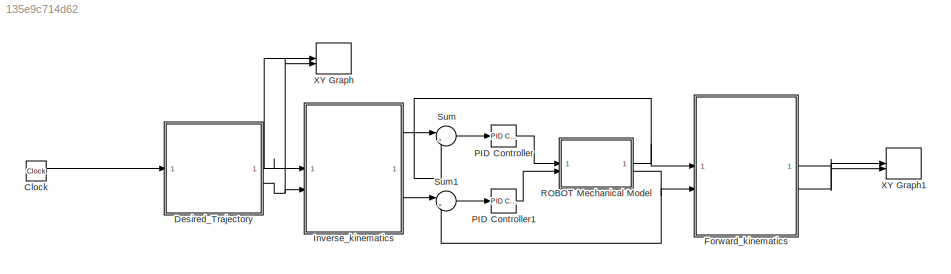
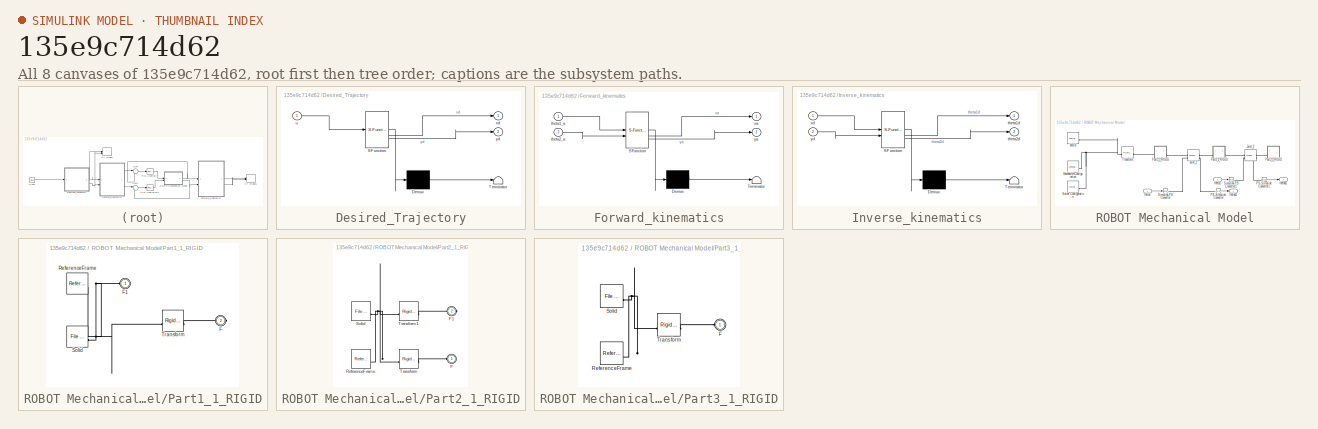
[diagram: thumbnail index - all 8 canvases of the model, root first then tree order]
MODEL slx_135e9c714d62
KIND model
CONFIG AbsTol = auto
CONFIG EnableMultiTasking = off
CONFIG FixedStep = auto
CONFIG MaxStep = auto
CONFIG MinStep = auto
CONFIG RelTol = 1e-3
CONFIG SampleTimeConstraint = Unconstrained
CONFIG SolverName = FixedStepAuto
CONFIG StartTime = 0.0
CONFIG StopTime = 10
WORKSPACE source: external: MATLAB File  (data not in archive)
BLOCK [Clock] Clock
BLOCK [SubSystem] Desired_Trajectory
  ErrorFcn = Stateflow.Translate.translate
  LibrarySourceBlock = simulink/User-Defined\nFunctions/MATLAB Function
  PermitHierarchicalResolution = ExplicitOnly
  SFBlockType = MATLAB Function
  TreatAsAtomicUnit = on
BLOCK [Demux] Desired_Trajectory/ Demux 
  Outputs = 1
BLOCK [S-Function] Desired_Trajectory/ SFunction 
  EnableBusSupport = on
  FunctionName = sf_sfun
  PortCounts = [1 3]
  SFcnIsStateOwnerBlock = off
  SFunctionDeploymentMode = off
  Tag = Stateflow S-Function 2
BLOCK [Terminator] Desired_Trajectory/ Terminator 
BLOCK [Inport] Desired_Trajectory/u
BLOCK [Outport] Desired_Trajectory/xd
BLOCK [Outport] Desired_Trajectory/yd
  Port = 2
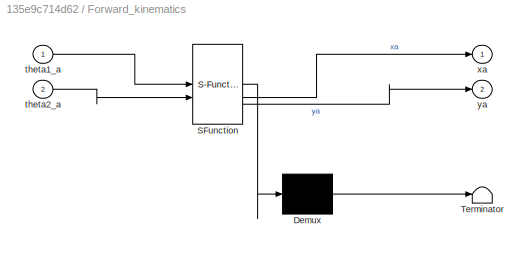
BLOCK [SubSystem] Forward_kinematics
  ErrorFcn = Stateflow.Translate.translate
  LibrarySourceBlock = simulink/User-Defined\nFunctions/MATLAB Function
  PermitHierarchicalResolution = ExplicitOnly
  SFBlockType = MATLAB Function
  TreatAsAtomicUnit = on
BLOCK [Demux] Forward_kinematics/ Demux 
  Outputs = 1
BLOCK [S-Function] Forward_kinematics/ SFunction 
  EnableBusSupport = on
  FunctionName = sf_sfun
  PortCounts = [2 3]
  SFcnIsStateOwnerBlock = off
  SFunctionDeploymentMode = off
  Tag = Stateflow S-Function 1
BLOCK [Terminator] Forward_kinematics/ Terminator 
BLOCK [Inport] Forward_kinematics/theta1_a
BLOCK [Inport] Forward_kinematics/theta2_a
  Port = 2
BLOCK [Outport] Forward_kinematics/xa
BLOCK [Outport] Forward_kinematics/ya
  Port = 2
BLOCK [SubSystem] Inverse_kinematics
  ErrorFcn = Stateflow.Translate.translate
  LibrarySourceBlock = simulink/User-Defined\nFunctions/MATLAB Function
  PermitHierarchicalResolution = ExplicitOnly
  SFBlockType = MATLAB Function
  TreatAsAtomicUnit = on
BLOCK [Demux] Inverse_kinematics/ Demux 
  Outputs = 1
BLOCK [S-Function] Inverse_kinematics/ SFunction 
  EnableBusSupport = on
  FunctionName = sf_sfun
  PortCounts = [2 3]
  SFcnIsStateOwnerBlock = off
  SFunctionDeploymentMode = off
  Tag = Stateflow S-Function 3
BLOCK [Terminator] Inverse_kinematics/ Terminator 
BLOCK [Outport] Inverse_kinematics/theta1d
BLOCK [Outport] Inverse_kinematics/theta2d
  Port = 2
BLOCK [Inport] Inverse_kinematics/xd
BLOCK [Inport] Inverse_kinematics/yd
  Port = 2
BLOCK [Reference] PID Controller  REF=slpidlib/PID Controller
  LibrarySourceBlock = simulink/Continuous/PID Controller
  SourceBlock = slpidlib/PID Controller
  SourceType = PID 1dof
BLOCK [Reference] PID Controller1  REF=slpidlib/PID Controller
  LibrarySourceBlock = simulink/Continuous/PID Controller
  SourceBlock = slpidlib/PID Controller
  SourceType = PID 1dof
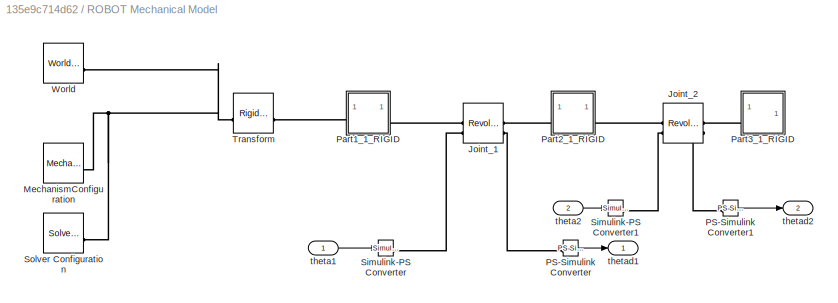
BLOCK [SubSystem] ROBOT Mechanical Model
BLOCK [Reference] ROBOT Mechanical Model/Joint_1  REF=sm_lib/Joints/Revolute Joint
  SourceBlock = sm_lib/Joints/Revolute Joint
  SourceType = Revolute Joint
BLOCK [Reference] ROBOT Mechanical Model/Joint_2  REF=sm_lib/Joints/Revolute Joint
  SourceBlock = sm_lib/Joints/Revolute Joint
  SourceType = Revolute Joint
BLOCK [Reference] ROBOT Mechanical Model/MechanismConfiguration  REF=sm_lib/Utilities/Mechanism
Configuration
  SourceBlock = sm_lib/Utilities/Mechanism\nConfiguration
  SourceType = Mechanism\nConfiguration
BLOCK [Reference] ROBOT Mechanical Model/PS-Simulink Converter  REF=nesl_utility/PS-Simulink
Converter
  SourceBlock = nesl_utility/PS-Simulink\nConverter
  SourceType = PS-Simulink\nConverter
BLOCK [Reference] ROBOT Mechanical Model/PS-Simulink Converter1  REF=nesl_utility/PS-Simulink
Converter
  SourceBlock = nesl_utility/PS-Simulink\nConverter
  SourceType = PS-Simulink\nConverter
BLOCK [SubSystem] ROBOT Mechanical Model/Part1_1_RIGID
BLOCK [PMIOPort] ROBOT Mechanical Model/Part1_1_RIGID/F
  Port = 2
  Side = Right
BLOCK [PMIOPort] ROBOT Mechanical Model/Part1_1_RIGID/F1
  Side = Left
BLOCK [Reference] ROBOT Mechanical Model/Part1_1_RIGID/ReferenceFrame  REF=sm_lib/Frames and
Transforms/Reference
Frame
  SourceBlock = sm_lib/Frames and\nTransforms/Reference\nFrame
  SourceType = Reference\nFrame
BLOCK [Reference] ROBOT Mechanical Model/Part1_1_RIGID/Solid  REF=sm_lib/Body Elements/File Solid
  SourceBlock = sm_lib/Body Elements/File Solid
  SourceType = File Solid
BLOCK [Reference] ROBOT Mechanical Model/Part1_1_RIGID/Transform  REF=sm_lib/Frames and
Transforms/Rigid
Transform
  SourceBlock = sm_lib/Frames and\nTransforms/Rigid\nTransform
  SourceType = Rigid\nTransform
BLOCK [SubSystem] ROBOT Mechanical Model/Part2_1_RIGID
BLOCK [PMIOPort] ROBOT Mechanical Model/Part2_1_RIGID/F
  Side = Left
BLOCK [PMIOPort] ROBOT Mechanical Model/Part2_1_RIGID/F1
  Port = 2
  Side = Right
BLOCK [Reference] ROBOT Mechanical Model/Part2_1_RIGID/ReferenceFrame  REF=sm_lib/Frames and
Transforms/Reference
Frame
  SourceBlock = sm_lib/Frames and\nTransforms/Reference\nFrame
  SourceType = Reference\nFrame
BLOCK [Reference] ROBOT Mechanical Model/Part2_1_RIGID/Solid  REF=sm_lib/Body Elements/File Solid
  SourceBlock = sm_lib/Body Elements/File Solid
  SourceType = File Solid
BLOCK [Reference] ROBOT Mechanical Model/Part2_1_RIGID/Transform  REF=sm_lib/Frames and
Transforms/Rigid
Transform
  SourceBlock = sm_lib/Frames and\nTransforms/Rigid\nTransform
  SourceType = Rigid\nTransform
BLOCK [Reference] ROBOT Mechanical Model/Part2_1_RIGID/Transform1  REF=sm_lib/Frames and
Transforms/Rigid
Transform
  SourceBlock = sm_lib/Frames and\nTransforms/Rigid\nTransform
  SourceType = Rigid\nTransform
BLOCK [SubSystem] ROBOT Mechanical Model/Part3_1_RIGID
BLOCK [PMIOPort] ROBOT Mechanical Model/Part3_1_RIGID/F
  Side = Left
BLOCK [Reference] ROBOT Mechanical Model/Part3_1_RIGID/ReferenceFrame  REF=sm_lib/Frames and
Transforms/Reference
Frame
  SourceBlock = sm_lib/Frames and\nTransforms/Reference\nFrame
  SourceType = Reference\nFrame
BLOCK [Reference] ROBOT Mechanical Model/Part3_1_RIGID/Solid  REF=sm_lib/Body Elements/File Solid
  SourceBlock = sm_lib/Body Elements/File Solid
  SourceType = File Solid
BLOCK [Reference] ROBOT Mechanical Model/Part3_1_RIGID/Transform  REF=sm_lib/Frames and
Transforms/Rigid
Transform
  SourceBlock = sm_lib/Frames and\nTransforms/Rigid\nTransform
  SourceType = Rigid\nTransform
BLOCK [Reference] ROBOT Mechanical Model/Simulink-PS Converter  REF=nesl_utility/Simulink-PS
Converter
  SourceBlock = nesl_utility/Simulink-PS\nConverter
  SourceType = Simulink-PS\nConverter
BLOCK [Reference] ROBOT Mechanical Model/Simulink-PS Converter1  REF=nesl_utility/Simulink-PS
Converter
  SourceBlock = nesl_utility/Simulink-PS\nConverter
  SourceType = Simulink-PS\nConverter
BLOCK [Reference] ROBOT Mechanical Model/Solver Configuration  REF=nesl_utility/Solver
Configuration
  SourceBlock = nesl_utility/Solver\nConfiguration
  SourceType = Solver\nConfiguration
BLOCK [Reference] ROBOT Mechanical Model/Transform  REF=sm_lib/Frames and
Transforms/Rigid
Transform
  SourceBlock = sm_lib/Frames and\nTransforms/Rigid\nTransform
  SourceType = Rigid\nTransform
BLOCK [Reference] ROBOT Mechanical Model/World  REF=sm_lib/Frames and
Transforms/World Frame
  SourceBlock = sm_lib/Frames and\nTransforms/World Frame
  SourceType = World Frame
BLOCK [Inport] ROBOT Mechanical Model/theta1
BLOCK [Inport] ROBOT Mechanical Model/theta2
  Port = 2
BLOCK [Outport] ROBOT Mechanical Model/thetad1
BLOCK [Outport] ROBOT Mechanical Model/thetad2
  Port = 2
BLOCK [Sum] Sum
  Inputs = |+-
BLOCK [Sum] Sum1
  Inputs = |+-
BLOCK [Record] XY Graph
  CompatibilityTag = XY
  FileSettingsInternal = {"entries":[{"content":{"excelSettings":{"content":{},"type":"Streamout.ExcelSettings"}},"type":"Streamout.FileSettingStorage","uuid":"2eab9bf2-d17b-45b5-89aa-d0e00e681bdd"}],"packageUris":["http://schema.mathworks.com/mf0/streamout_blocks/R2020a"],"version":"1.0"}
  Layout = [1 1]
  SignalsInternal = {"entries":[{"content":{"signals":[{"content":{"blockPath":["Robotics_Arm/XY Graph"],"channel":[],"dimensions":[1],"domain":"Robotics_Arm/XY Graph","lineColor":"#a2142f","plots":[1],"port":1,"sid":[""],"signalID":395,"signalName":"Desired_Trajectory:1"},"type":"RecordBlkView.Signal","uuid":"5d34281d-6d91-4a7d-b94d-586ddb86f2d8"},{"content":{"blockPath":["Robotics_Arm/XY Graph"],"channel":[],"dimen...<+403ch>
  VisualizationBindings = {"xyplotplugin":{"info":[{"series":[{"bindingParametersList":[{"parameter":"X-Axis","signalID":395,"signalName":"Desired_Trajectory:1"},{"parameter":"Y-Axis","signalID":399,"signalName":"Desired_Trajectory:2"}],"seriesID":58681}],"subplotID":1}]}}
BLOCK [Record] XY Graph1
  CompatibilityTag = XY
  FileSettingsInternal = {"entries":[{"content":{"excelSettings":{"content":{},"type":"Streamout.ExcelSettings"}},"type":"Streamout.FileSettingStorage","uuid":"1b659b81-0627-4da4-8fe3-9d1aa1dba5cf"}],"packageUris":["http://schema.mathworks.com/mf0/streamout_blocks/R2020a"],"version":"1.0"}
  Layout = [1 1]
  SignalsInternal = {"entries":[{"content":{"signals":[{"content":{"blockPath":["Robotics_Arm/XY Graph1"],"channel":[],"dimensions":[1],"domain":"Robotics_Arm/XY Graph1","lineColor":"#a2142f","plots":[1],"port":1,"sid":[""],"signalID":403,"signalName":"Forward_kinematics:1"},"type":"RecordBlkView.Signal","uuid":"eb5d89e5-5a8d-404c-ad89-7674438167e7"},{"content":{"blockPath":["Robotics_Arm/XY Graph1"],"channel":[],"di...<+407ch>
  VisualizationBindings = {"xyplotplugin":{"info":[{"series":[{"bindingParametersList":[{"parameter":"X-Axis","signalID":403,"signalName":"Forward_kinematics:1"},{"parameter":"Y-Axis","signalID":407,"signalName":"Forward_kinematics:2"}],"seriesID":16406}],"subplotID":1}]}}
LINE Clock:1 -> Desired_Trajectory:1
NET Desired_Trajectory:1 -> Inverse_kinematics:1, XY Graph:1
NET Desired_Trajectory:2 -> Inverse_kinematics:2, XY Graph:2
LINE Forward_kinematics:1 -> XY Graph1:1
LINE Forward_kinematics:2 -> XY Graph1:2
LINE Inverse_kinematics:1 -> Sum:1
LINE Inverse_kinematics:2 -> Sum1:1
LINE PID Controller1:1 -> ROBOT Mechanical Model:2
LINE PID Controller:1 -> ROBOT Mechanical Model:1
LINE ROBOT Mechanical Model/PS-Simulink Converter1:1 -> ROBOT Mechanical Model/thetad2:1
LINE ROBOT Mechanical Model/PS-Simulink Converter:1 -> ROBOT Mechanical Model/thetad1:1
LINE ROBOT Mechanical Model/theta1:1 -> ROBOT Mechanical Model/Simulink-PS Converter:1
LINE ROBOT Mechanical Model/theta2:1 -> ROBOT Mechanical Model/Simulink-PS Converter1:1
NET ROBOT Mechanical Model:1 -> Forward_kinematics:1, Sum:2
NET ROBOT Mechanical Model:2 -> Forward_kinematics:2, Sum1:2
LINE Sum1:1 -> PID Controller1:1
LINE Sum:1 -> PID Controller:1
PLINE ROBOT Mechanical Model/Joint_1:LConn1 -- ROBOT Mechanical Model/Part1_1_RIGID:RConn1
PLINE ROBOT Mechanical Model/Joint_1:LConn2 -- ROBOT Mechanical Model/Simulink-PS Converter:RConn1
PLINE ROBOT Mechanical Model/Joint_1:RConn1 -- ROBOT Mechanical Model/Part2_1_RIGID:LConn1
PLINE ROBOT Mechanical Model/Joint_1:RConn2 -- ROBOT Mechanical Model/PS-Simulink Converter:LConn1
PLINE ROBOT Mechanical Model/Joint_2:LConn1 -- ROBOT Mechanical Model/Part2_1_RIGID:RConn1
PLINE ROBOT Mechanical Model/Joint_2:LConn2 -- ROBOT Mechanical Model/Simulink-PS Converter1:RConn1
PLINE ROBOT Mechanical Model/Joint_2:RConn1 -- ROBOT Mechanical Model/Part3_1_RIGID:LConn1
PLINE ROBOT Mechanical Model/Joint_2:RConn2 -- ROBOT Mechanical Model/PS-Simulink Converter1:LConn1
PNET net1: ROBOT Mechanical Model/MechanismConfiguration:RConn1 -- ROBOT Mechanical Model/Solver Configuration:RConn1 -- ROBOT Mechanical Model/Transform:LConn1 -- ROBOT Mechanical Model/World:RConn1
PNET net2: ROBOT Mechanical Model/Part1_1_RIGID/F1:RConn1 -- ROBOT Mechanical Model/Part1_1_RIGID/ReferenceFrame:RConn1 -- ROBOT Mechanical Model/Part1_1_RIGID/Solid:RConn1 -- ROBOT Mechanical Model/Part1_1_RIGID/Transform:LConn1
PLINE ROBOT Mechanical Model/Part1_1_RIGID/F:RConn1 -- ROBOT Mechanical Model/Part1_1_RIGID/Transform:RConn1
PLINE ROBOT Mechanical Model/Part1_1_RIGID:LConn1 -- ROBOT Mechanical Model/Transform:RConn1
PLINE ROBOT Mechanical Model/Part2_1_RIGID/F1:RConn1 -- ROBOT Mechanical Model/Part2_1_RIGID/Transform1:RConn1
PLINE ROBOT Mechanical Model/Part2_1_RIGID/F:RConn1 -- ROBOT Mechanical Model/Part2_1_RIGID/Transform:RConn1
PNET net3: ROBOT Mechanical Model/Part2_1_RIGID/ReferenceFrame:RConn1 -- ROBOT Mechanical Model/Part2_1_RIGID/Solid:RConn1 -- ROBOT Mechanical Model/Part2_1_RIGID/Transform1:LConn1 -- ROBOT Mechanical Model/Part2_1_RIGID/Transform:LConn1
PLINE ROBOT Mechanical Model/Part3_1_RIGID/F:RConn1 -- ROBOT Mechanical Model/Part3_1_RIGID/Transform:RConn1
PNET net4: ROBOT Mechanical Model/Part3_1_RIGID/ReferenceFrame:RConn1 -- ROBOT Mechanical Model/Part3_1_RIGID/Solid:RConn1 -- ROBOT Mechanical Model/Part3_1_RIGID/Transform:LConn1
note: NET lines group one-source signal fan-out (src -> all destinations, sorted); 1:1 wires keep LINE; PNET lines group multi-terminal physical nets as a canonical sorted terminal list (undirected conserving connections); 2-terminal nets keep the pairwise PLINE form
CHART Desired_Trajectory states=1 transitions=1
  STATE_LABEL 'eML_blk_kernel()'
  STATE_LABEL 'SCRIPT:\nfunction [xd,yd] = Desired_Trajectory(u)\n\nxd = (1 + 0.5*cos((2*pi/3)*u + pi/2));\nyd = (1 + 0.5*sin((2*pi/3)*u + pi/2));'
CHART Inverse_kinematics states=1 transitions=1
  STATE_LABEL 'eML_blk_kernel()'
  STATE_LABEL 'SCRIPT:\nfunction [theta1d,theta2d] = Inverse_kinematics(xd,yd)\nl1 =1;\nl2 =1;\ntheta2d = acos((xd^2+yd^2-l1^2-l2^2)/2*l1*l2);\ntheta1d = atan(yd/xd)-atan((l2*sin(theta2d))/(l1 + l2*cos(theta2d)));\n'
CHART Forward_kinematics states=1 transitions=1
  STATE_LABEL 'eML_blk_kernel()'
  STATE_LABEL 'SCRIPT:\nfunction [xa,ya] = Forward_kinematics(theta1_a,theta2_a)\nl1=1;\nl2=1;\nxa=l1*cos(theta1_a)+l2*cos(theta1_a+theta2_a);\nya=l1*sin(theta1_a)+12*sin(theta1_a+theta2_a);\n'
CHART  states=0 transitions=0
CHART  states=0 transitions=0
CHART  states=0 transitions=0
